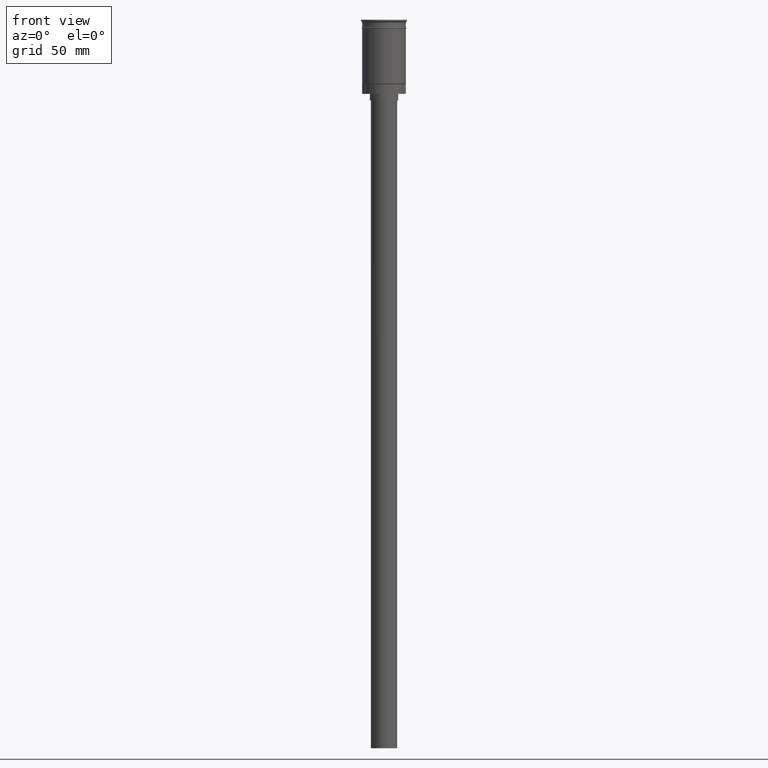
[diagram: clean part render]
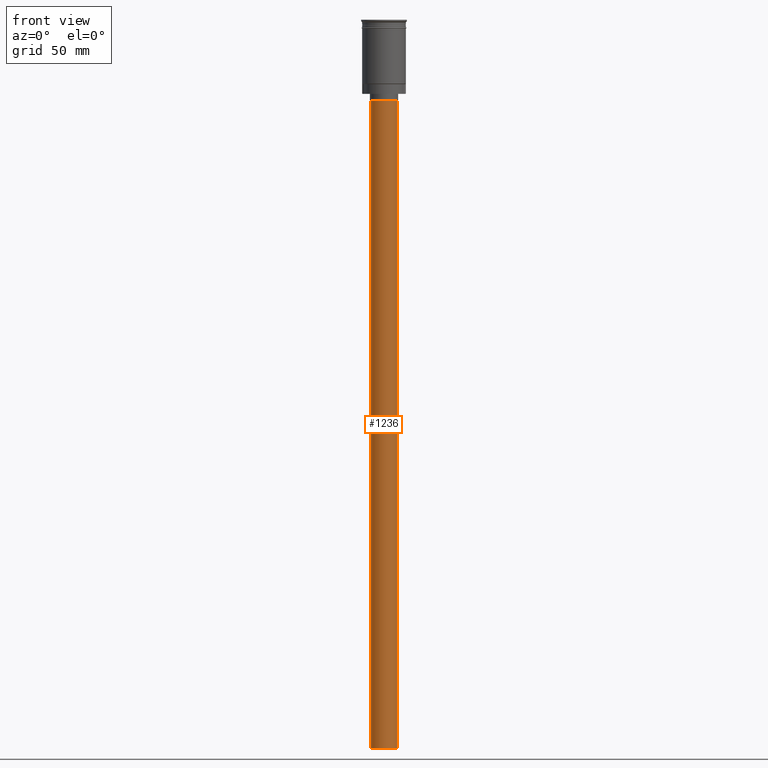
[diagram: same view with one face highlighted and labeled with its STEP entity id]
A machine part, front view. The second image highlights one B-rep face of the part: STEP entity #1236.
In plain terms, the highlighted cylindrical surface (edge-blend (fillet) strip) has radius 6 mm, axis along (-0, -0, 1).
Its self-contained STEP definition (entity closure, byte-faithful):
#68 = DIRECTION ( 'NONE',  ( -0.000000000000000000, -0.000000000000000000, 1.000000000000000000 ) ) ;
#111 = DIRECTION ( 'NONE',  ( 0.000000000000000000, 0.000000000000000000, -1.000000000000000000 ) ) ;
#159 = DIRECTION ( 'NONE',  ( -1.000000000000000000, 0.000000000000000000, 0.000000000000000000 ) ) ;
#206 = ORIENTED_EDGE ( 'NONE', *, *, #1039, .T. ) ;
#254 = AXIS2_PLACEMENT_3D ( 'NONE', #1335, #810, #849 ) ;
#261 = CARTESIAN_POINT ( 'NONE',  ( 0.000000000000000000, 0.000000000000000000, -333.9999999999999432 ) ) ;
#285 = ORIENTED_EDGE ( 'NONE', *, *, #903, .F. ) ;
#344 = FACE_OUTER_BOUND ( 'NONE', #440, .T. ) ;
#401 = CARTESIAN_POINT ( 'NONE',  ( 6.000000000000000888, 0.000000000000000000, -333.9999999999999432 ) ) ;
#440 = EDGE_LOOP ( 'NONE', ( #970, #285, #538, #206 ) ) ;
#485 = AXIS2_PLACEMENT_3D ( 'NONE', #776, #1271, #159 ) ;
#538 = ORIENTED_EDGE ( 'NONE', *, *, #1109, .T. ) ;
#585 = CARTESIAN_POINT ( 'NONE',  ( -6.000000000000000888, 7.347880794884120722E-16, -333.9999999999999432 ) ) ;
#604 = DIRECTION ( 'NONE',  ( -1.000000000000000000, 0.000000000000000000, 0.000000000000000000 ) ) ;
#684 = LINE ( 'NONE', #1178, #998 ) ;
#718 = VERTEX_POINT ( 'NONE', #1590 ) ;
#719 = VECTOR ( 'NONE', #724, 1000.000000000000000 ) ;
#724 = DIRECTION ( 'NONE',  ( -0.000000000000000000, -0.000000000000000000, 1.000000000000000000 ) ) ;
#732 = EDGE_CURVE ( 'NONE', #1141, #718, #1326, .T. ) ;
#776 = CARTESIAN_POINT ( 'NONE',  ( 0.000000000000000000, 0.000000000000000000, -37.00000000000000000 ) ) ;
#810 = DIRECTION ( 'NONE',  ( -0.000000000000000000, -0.000000000000000000, 1.000000000000000000 ) ) ;
#818 = CARTESIAN_POINT ( 'NONE',  ( -6.000000000000000888, 7.347880794884120722E-16, -333.9999999999999432 ) ) ;
#840 = CYLINDRICAL_SURFACE ( 'NONE', #254, 6.000000000000000888 ) ;
#849 = DIRECTION ( 'NONE',  ( 1.000000000000000000, 0.000000000000000000, 0.000000000000000000 ) ) ;
#854 = VERTEX_POINT ( 'NONE', #1112 ) ;
#903 = EDGE_CURVE ( 'NONE', #961, #1141, #1261, .T. ) ;
#961 = VERTEX_POINT ( 'NONE', #401 ) ;
#970 = ORIENTED_EDGE ( 'NONE', *, *, #732, .F. ) ;
#998 = VECTOR ( 'NONE', #68, 1000.000000000000000 ) ;
#1039 = EDGE_CURVE ( 'NONE', #854, #718, #1472, .T. ) ;
#1109 = EDGE_CURVE ( 'NONE', #961, #854, #684, .T. ) ;
#1112 = CARTESIAN_POINT ( 'NONE',  ( 6.000000000000000888, 0.000000000000000000, -37.00000000000000000 ) ) ;
#1141 = VERTEX_POINT ( 'NONE', #585 ) ;
#1178 = CARTESIAN_POINT ( 'NONE',  ( 6.000000000000000888, 0.000000000000000000, -333.9999999999999432 ) ) ;
#1236 = ADVANCED_FACE ( 'NONE', ( #344 ), #840, .T. ) ;
#1261 = CIRCLE ( 'NONE', #1283, 6.000000000000000888 ) ;
#1271 = DIRECTION ( 'NONE',  ( 0.000000000000000000, 0.000000000000000000, -1.000000000000000000 ) ) ;
#1283 = AXIS2_PLACEMENT_3D ( 'NONE', #261, #111, #604 ) ;
#1326 = LINE ( 'NONE', #818, #719 ) ;
#1335 = CARTESIAN_POINT ( 'NONE',  ( 0.000000000000000000, 0.000000000000000000, -333.9999999999999432 ) ) ;
#1472 = CIRCLE ( 'NONE', #485, 6.000000000000000888 ) ;
#1590 = CARTESIAN_POINT ( 'NONE',  ( -6.000000000000000888, 7.347880794884120722E-16, -37.00000000000000000 ) ) ;